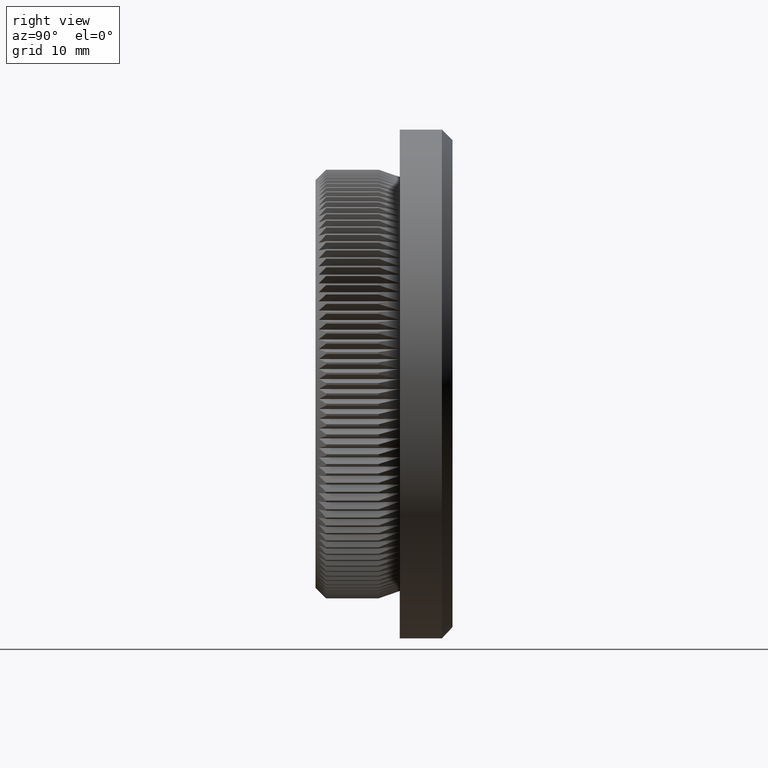
[diagram: clean part render]
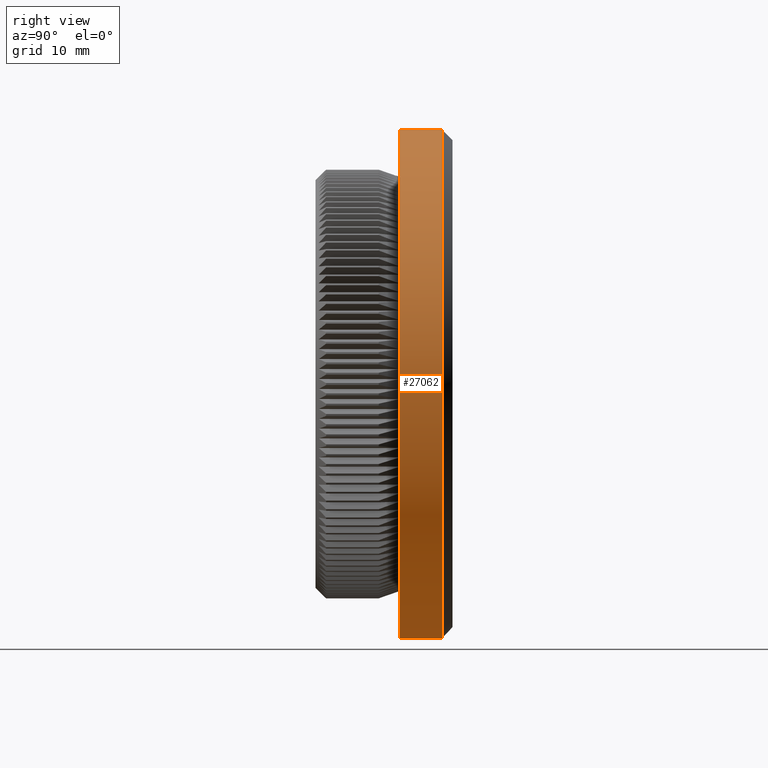
[diagram: same view with one face highlighted and labeled with its STEP entity id]
A machine part, right view. The second image highlights one B-rep face of the part: STEP entity #27062.
In plain terms, the highlighted cylindrical surface (bore or boss wall) has radius 24.15 mm, axis along (-0, -1, -0).
Its self-contained STEP definition (entity closure, byte-faithful):
#2283 = CARTESIAN_POINT ( 'NONE',  ( 0.0000000000000000000, 8.000000000000000000, -24.14999999999999500 ) ) ;
#4749 = ORIENTED_EDGE ( 'NONE', *, *, #22376, .T. ) ;
#5874 = VERTEX_POINT ( 'NONE', #17032 ) ;
#6365 = DIRECTION ( 'NONE',  ( 0.0000000000000000000, 0.0000000000000000000, 1.000000000000000000 ) ) ;
#6908 = CIRCLE ( 'NONE', #15054, 24.14999999999999900 ) ;
#10940 = FACE_OUTER_BOUND ( 'NONE', #31297, .T. ) ;
#15054 = AXIS2_PLACEMENT_3D ( 'NONE', #28428, #18790, #6365 ) ;
#15338 = AXIS2_PLACEMENT_3D ( 'NONE', #31370, #23735, #23840 ) ;
#17032 = CARTESIAN_POINT ( 'NONE',  ( 0.0000000000000000000, 11.99999999999999500, 24.14999999999999900 ) ) ;
#17463 = FACE_OUTER_BOUND ( 'NONE', #19628, .T. ) ;
#18790 = DIRECTION ( 'NONE',  ( -0.0000000000000000000, -1.000000000000000000, -0.0000000000000000000 ) ) ;
#19628 = EDGE_LOOP ( 'NONE', ( #4749 ) ) ;
#20037 = VERTEX_POINT ( 'NONE', #2283 ) ;
#22075 = CIRCLE ( 'NONE', #31155, 24.14999999999999500 ) ;
#22376 = EDGE_CURVE ( 'NONE', #5874, #5874, #6908, .T. ) ;
#22894 = ORIENTED_EDGE ( 'NONE', *, *, #26475, .F. ) ;
#23735 = DIRECTION ( 'NONE',  ( -0.0000000000000000000, -1.000000000000000000, -0.0000000000000000000 ) ) ;
#23840 = DIRECTION ( 'NONE',  ( 0.0000000000000000000, 0.0000000000000000000, -1.000000000000000000 ) ) ;
#25051 = CARTESIAN_POINT ( 'NONE',  ( 0.0000000000000000000, 8.000000000000000000, 0.0000000000000000000 ) ) ;
#25154 = DIRECTION ( 'NONE',  ( -0.0000000000000000000, -1.000000000000000000, -0.0000000000000000000 ) ) ;
#25907 = CYLINDRICAL_SURFACE ( 'NONE', #15338, 24.14999999999999900 ) ;
#26475 = EDGE_CURVE ( 'NONE', #20037, #20037, #22075, .T. ) ;
#27062 = ADVANCED_FACE ( 'NONE', ( #17463, #10940 ), #25907, .T. ) ;
#28428 = CARTESIAN_POINT ( 'NONE',  ( 0.0000000000000000000, 11.99999999999999500, 0.0000000000000000000 ) ) ;
#30014 = DIRECTION ( 'NONE',  ( 0.0000000000000000000, 0.0000000000000000000, -1.000000000000000000 ) ) ;
#31155 = AXIS2_PLACEMENT_3D ( 'NONE', #25051, #25154, #30014 ) ;
#31297 = EDGE_LOOP ( 'NONE', ( #22894 ) ) ;
#31370 = CARTESIAN_POINT ( 'NONE',  ( 0.0000000000000000000, 0.0000000000000000000, 0.0000000000000000000 ) ) ;